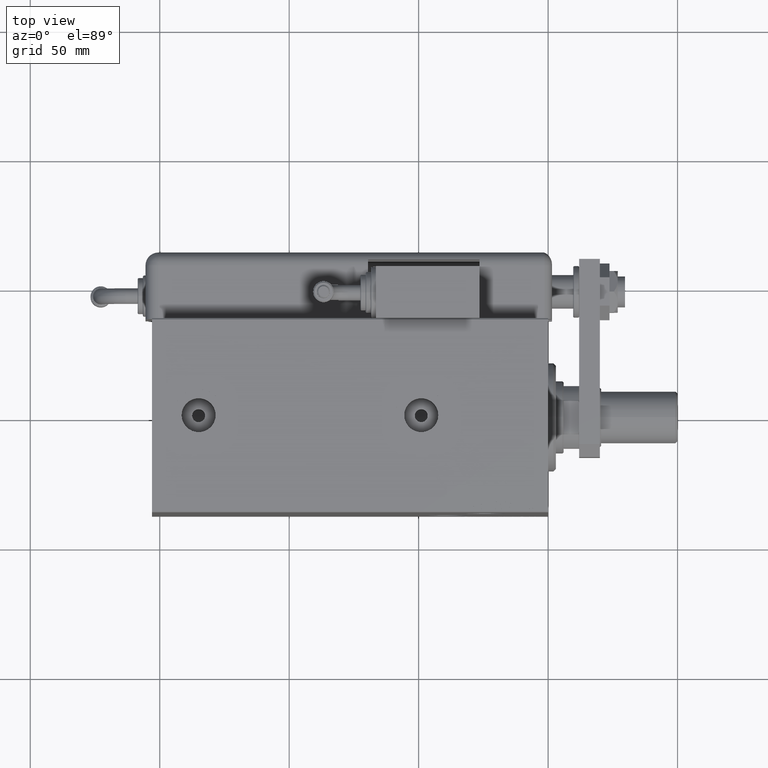
[diagram: clean part render]
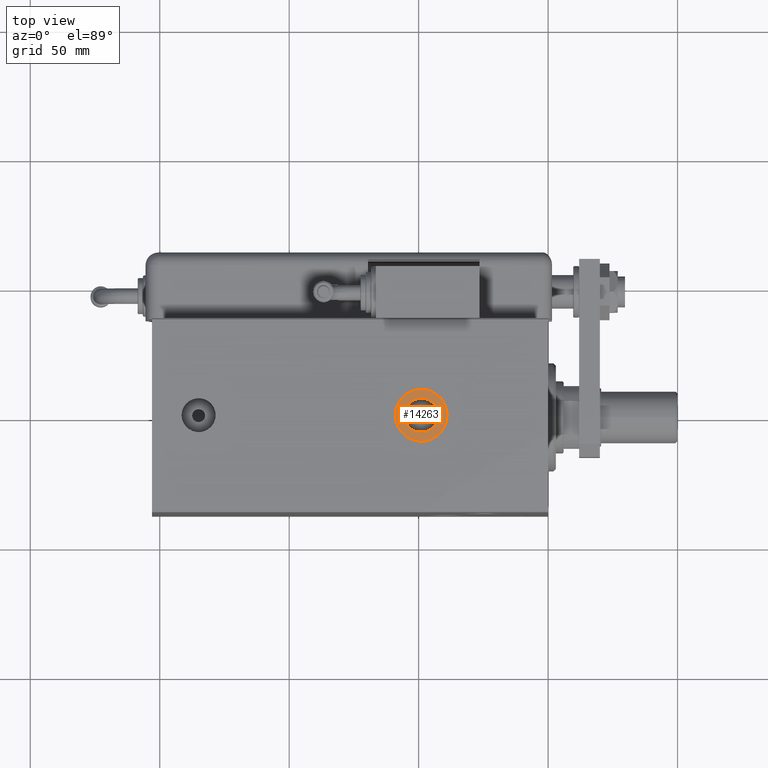
[diagram: same view with one face highlighted and labeled with its STEP entity id]
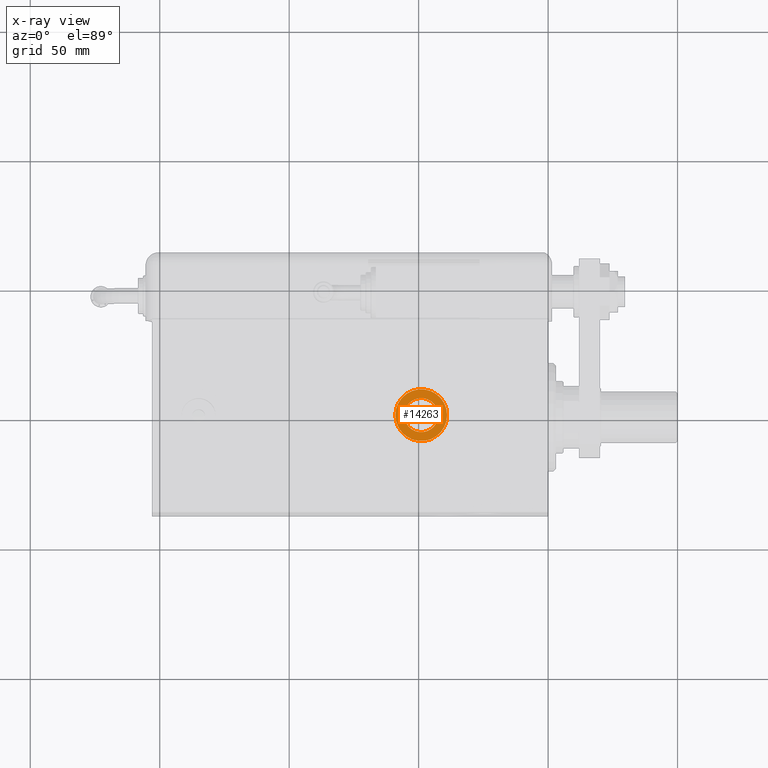
[diagram: x-ray of the same camera — body ghosted, the highlighted face saturated]
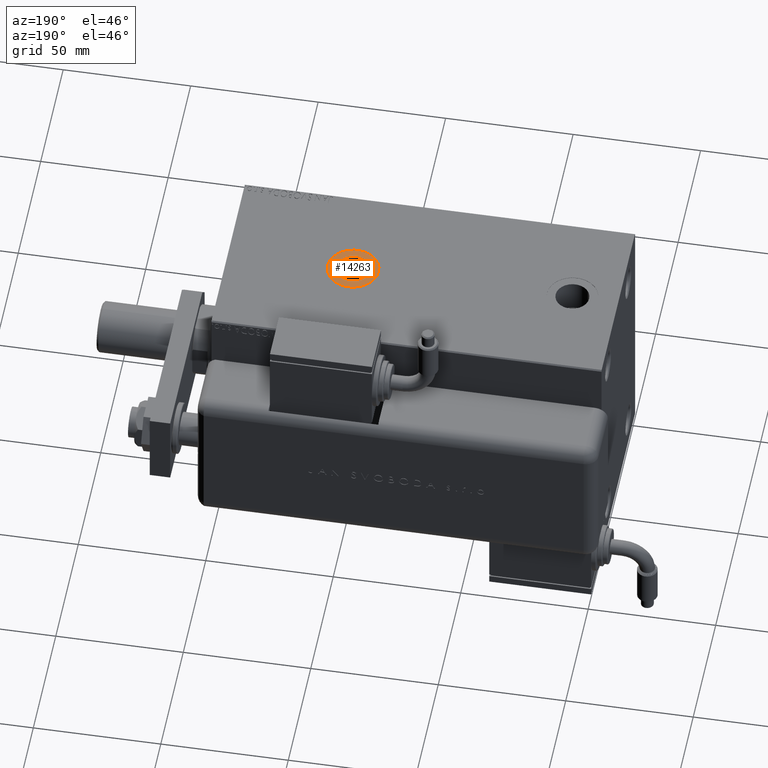
[diagram: same view with one face highlighted and labeled with its STEP entity id]
A machine part, top view. The second image highlights one B-rep face of the part: STEP entity #14263.
The next image is the same camera in x-ray: the body ghosted, the highlighted face saturated — about 0% of this face is hidden behind the body in this view.
A second angle (auxiliary view) of the same face is appended — the face is thin or edge-on in the first view.
In plain terms, the highlighted planar face has unit normal (-0, 0, 1).
Its self-contained STEP definition (entity closure, byte-faithful):
#2303 = CARTESIAN_POINT ( 'NONE',  ( 49.00000000000000000, 3.034628949564099880E-15, -49.90000000000000568 ) ) ;
#2365 = DIRECTION ( 'NONE',  ( -1.000000000000000000, 0.000000000000000000, -0.000000000000000000 ) ) ;
#3038 = DIRECTION ( 'NONE',  ( 0.000000000000000000, 0.000000000000000000, -1.000000000000000000 ) ) ;
#5218 = AXIS2_PLACEMENT_3D ( 'NONE', #36068, #3038, #42390 ) ;
#6786 = AXIS2_PLACEMENT_3D ( 'NONE', #12123, #36237, #56238 ) ;
#6958 = ORIENTED_EDGE ( 'NONE', *, *, #51086, .F. ) ;
#7067 = ORIENTED_EDGE ( 'NONE', *, *, #35191, .T. ) ;
#9523 = DIRECTION ( 'NONE',  ( 0.000000000000000000, 0.000000000000000000, -1.000000000000000000 ) ) ;
#10586 = AXIS2_PLACEMENT_3D ( 'NONE', #17276, #56331, #2365 ) ;
#12123 = CARTESIAN_POINT ( 'NONE',  ( 49.00000000000000000, 3.034628949564099880E-15, -49.90000000000000568 ) ) ;
#12772 = DIRECTION ( 'NONE',  ( -1.000000000000000000, 0.000000000000000000, 0.000000000000000000 ) ) ;
#14263 = ADVANCED_FACE ( 'NONE', ( #36018, #17595 ), #32183, .T. ) ;
#17276 = CARTESIAN_POINT ( 'NONE',  ( 0.000000000000000000, 0.000000000000000000, -49.90000000000000568 ) ) ;
#17595 = FACE_OUTER_BOUND ( 'NONE', #30657, .T. ) ;
#19882 = VERTEX_POINT ( 'NONE', #38050 ) ;
#21042 = DIRECTION ( 'NONE',  ( 0.000000000000000000, 0.000000000000000000, -1.000000000000000000 ) ) ;
#21605 = CARTESIAN_POINT ( 'NONE',  ( 42.42000000000000171, 3.034628949564099880E-15, -49.90000000000000568 ) ) ;
#22967 = VERTEX_POINT ( 'NONE', #21605 ) ;
#27577 = EDGE_LOOP ( 'NONE', ( #28047, #6958 ) ) ;
#28047 = ORIENTED_EDGE ( 'NONE', *, *, #39803, .F. ) ;
#28252 = AXIS2_PLACEMENT_3D ( 'NONE', #2303, #21042, #12772 ) ;
#30657 = EDGE_LOOP ( 'NONE', ( #52670, #7067 ) ) ;
#32183 = PLANE ( 'NONE',  #10586 ) ;
#33620 = CARTESIAN_POINT ( 'NONE',  ( 49.00000000000000000, 3.034628949564099880E-15, -49.90000000000000568 ) ) ;
#35191 = EDGE_CURVE ( 'NONE', #38724, #19882, #58489, .T. ) ;
#36018 = FACE_BOUND ( 'NONE', #27577, .T. ) ;
#36068 = CARTESIAN_POINT ( 'NONE',  ( 49.00000000000000000, 3.034628949564099880E-15, -49.90000000000000568 ) ) ;
#36237 = DIRECTION ( 'NONE',  ( 0.000000000000000000, 0.000000000000000000, -1.000000000000000000 ) ) ;
#37794 = AXIS2_PLACEMENT_3D ( 'NONE', #33620, #9523, #57777 ) ;
#38050 = CARTESIAN_POINT ( 'NONE',  ( 39.00000000000000711, 3.034628949564099880E-15, -49.90000000000000568 ) ) ;
#38724 = VERTEX_POINT ( 'NONE', #59144 ) ;
#39803 = EDGE_CURVE ( 'NONE', #22967, #57177, #60683, .T. ) ;
#42390 = DIRECTION ( 'NONE',  ( -1.000000000000000000, 0.000000000000000000, 0.000000000000000000 ) ) ;
#42920 = CARTESIAN_POINT ( 'NONE',  ( 55.58000000000000540, 3.840446543403058527E-15, -49.90000000000000568 ) ) ;
#51086 = EDGE_CURVE ( 'NONE', #57177, #22967, #58976, .T. ) ;
#52670 = ORIENTED_EDGE ( 'NONE', *, *, #54072, .T. ) ;
#54072 = EDGE_CURVE ( 'NONE', #19882, #38724, #57073, .T. ) ;
#56238 = DIRECTION ( 'NONE',  ( -1.000000000000000000, 0.000000000000000000, 0.000000000000000000 ) ) ;
#56331 = DIRECTION ( 'NONE',  ( 0.000000000000000000, 0.000000000000000000, -1.000000000000000000 ) ) ;
#57073 = CIRCLE ( 'NONE', #37794, 9.999999999999994671 ) ;
#57177 = VERTEX_POINT ( 'NONE', #42920 ) ;
#57777 = DIRECTION ( 'NONE',  ( -1.000000000000000000, 0.000000000000000000, 0.000000000000000000 ) ) ;
#58489 = CIRCLE ( 'NONE', #6786, 9.999999999999994671 ) ;
#58976 = CIRCLE ( 'NONE', #5218, 6.580000000000002736 ) ;
#59144 = CARTESIAN_POINT ( 'NONE',  ( 59.00000000000000000, 4.259275748711452545E-15, -49.90000000000000568 ) ) ;
#60683 = CIRCLE ( 'NONE', #28252, 6.580000000000002736 ) ;